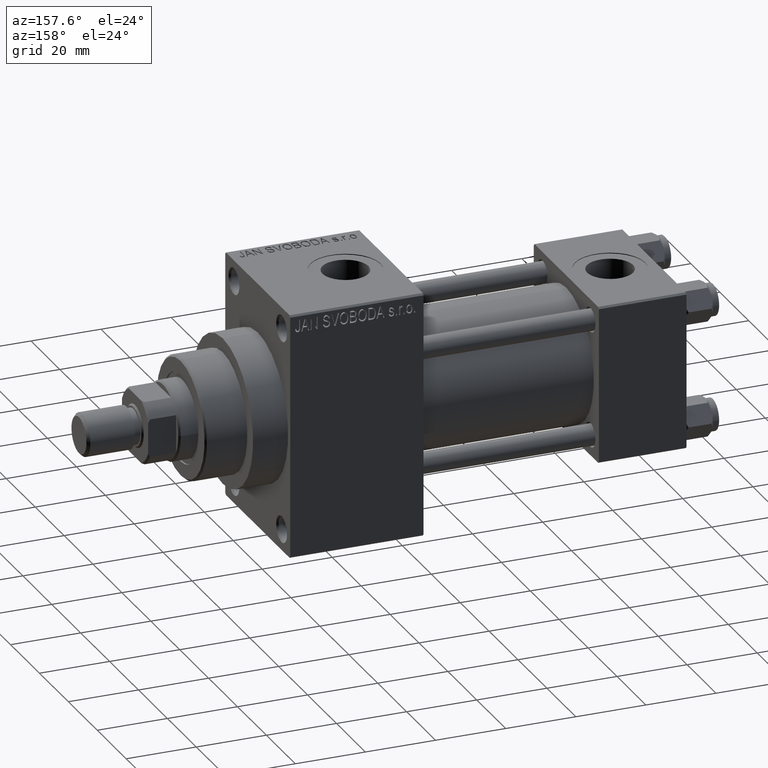
[diagram: clean part render]
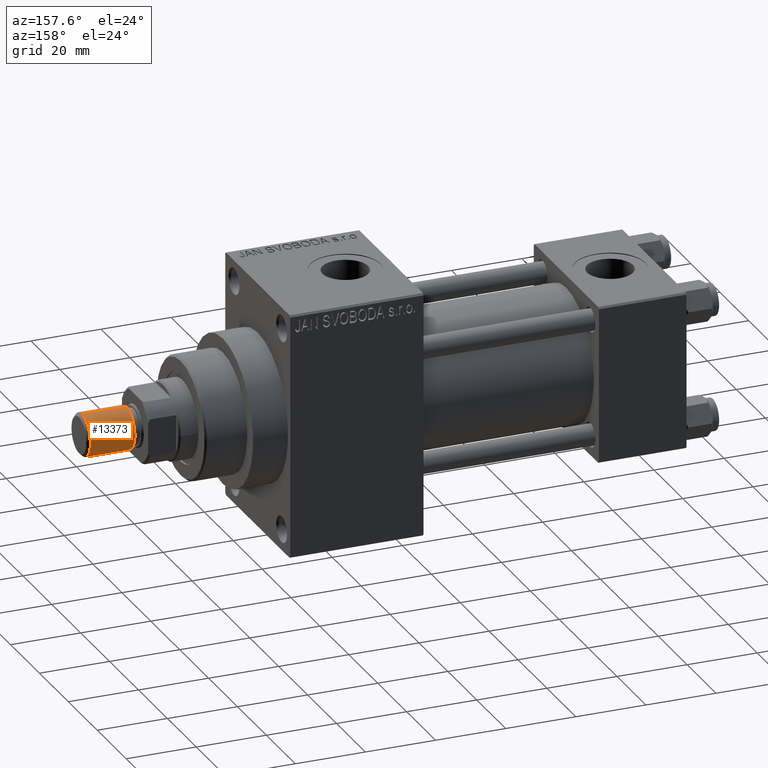
[diagram: same view with one face highlighted and labeled with its STEP entity id]
A machine part, auxiliary view. The second image highlights one B-rep face of the part: STEP entity #13373.
In plain terms, the highlighted cylindrical surface (edge-blend (fillet) strip) has radius 6 mm, axis along (1, -0, -0).
Its self-contained STEP definition (entity closure, byte-faithful):
#1304 = DIRECTION ( 'NONE',  ( -0.000000000000000000, -0.000000000000000000, -1.000000000000000000 ) ) ;
#5035 = EDGE_CURVE ( 'NONE', #37048, #5448, #44398, .T. ) ;
#5448 = VERTEX_POINT ( 'NONE', #22685 ) ;
#8377 = EDGE_CURVE ( 'NONE', #5448, #18850, #8860, .T. ) ;
#8860 = CIRCLE ( 'NONE', #46515, 6.000000000000000888 ) ;
#10750 = VERTEX_POINT ( 'NONE', #47335 ) ;
#11121 = AXIS2_PLACEMENT_3D ( 'NONE', #13384, #46579, #42495 ) ;
#11896 = CARTESIAN_POINT ( 'NONE',  ( 6.000000000000000888, 7.347880794884120722E-16, 13.50000000000000000 ) ) ;
#13373 = ADVANCED_FACE ( 'NONE', ( #19375 ), #41503, .T. ) ;
#13384 = CARTESIAN_POINT ( 'NONE',  ( 0.000000000000000000, 0.000000000000000000, 13.50000000000000000 ) ) ;
#15975 = CARTESIAN_POINT ( 'NONE',  ( -6.000000000000000888, 0.000000000000000000, 0.8000000000000055955 ) ) ;
#16009 = CARTESIAN_POINT ( 'NONE',  ( 0.000000000000000000, 0.000000000000000000, 13.50000000000000000 ) ) ;
#18850 = VERTEX_POINT ( 'NONE', #15975 ) ;
#19033 = ORIENTED_EDGE ( 'NONE', *, *, #46773, .F. ) ;
#19375 = FACE_OUTER_BOUND ( 'NONE', #29557, .T. ) ;
#21347 = EDGE_CURVE ( 'NONE', #37048, #10750, #31108, .T. ) ;
#21926 = ORIENTED_EDGE ( 'NONE', *, *, #5035, .T. ) ;
#22673 = DIRECTION ( 'NONE',  ( -0.000000000000000000, -0.000000000000000000, 1.000000000000000000 ) ) ;
#22685 = CARTESIAN_POINT ( 'NONE',  ( 6.000000000000000888, 7.347880794884120722E-16, 0.8000000000000055955 ) ) ;
#27966 = ORIENTED_EDGE ( 'NONE', *, *, #21347, .F. ) ;
#29557 = EDGE_LOOP ( 'NONE', ( #27966, #21926, #38776, #19033 ) ) ;
#30423 = CARTESIAN_POINT ( 'NONE',  ( 6.000000000000000888, 7.347880794884120722E-16, 13.50000000000000000 ) ) ;
#30441 = DIRECTION ( 'NONE',  ( -1.000000000000000000, 0.000000000000000000, 0.000000000000000000 ) ) ;
#31108 = CIRCLE ( 'NONE', #11121, 6.000000000000000888 ) ;
#34029 = DIRECTION ( 'NONE',  ( -0.000000000000000000, -0.000000000000000000, -1.000000000000000000 ) ) ;
#34522 = DIRECTION ( 'NONE',  ( -0.000000000000000000, -0.000000000000000000, -1.000000000000000000 ) ) ;
#35235 = CARTESIAN_POINT ( 'NONE',  ( -6.000000000000000888, 0.000000000000000000, 13.50000000000000000 ) ) ;
#35726 = VECTOR ( 'NONE', #34029, 1000.000000000000000 ) ;
#36641 = DIRECTION ( 'NONE',  ( 1.000000000000000000, 0.000000000000000000, 0.000000000000000000 ) ) ;
#37048 = VERTEX_POINT ( 'NONE', #30423 ) ;
#38776 = ORIENTED_EDGE ( 'NONE', *, *, #8377, .T. ) ;
#38990 = AXIS2_PLACEMENT_3D ( 'NONE', #16009, #1304, #30441 ) ;
#41503 = CYLINDRICAL_SURFACE ( 'NONE', #38990, 6.000000000000000888 ) ;
#42222 = LINE ( 'NONE', #35235, #42423 ) ;
#42423 = VECTOR ( 'NONE', #34522, 1000.000000000000000 ) ;
#42495 = DIRECTION ( 'NONE',  ( 1.000000000000000000, 0.000000000000000000, 0.000000000000000000 ) ) ;
#44398 = LINE ( 'NONE', #11896, #35726 ) ;
#44582 = CARTESIAN_POINT ( 'NONE',  ( 0.000000000000000000, 0.000000000000000000, 0.8000000000000055955 ) ) ;
#46515 = AXIS2_PLACEMENT_3D ( 'NONE', #44582, #22673, #36641 ) ;
#46579 = DIRECTION ( 'NONE',  ( 0.000000000000000000, 0.000000000000000000, 1.000000000000000000 ) ) ;
#46773 = EDGE_CURVE ( 'NONE', #10750, #18850, #42222, .T. ) ;
#47335 = CARTESIAN_POINT ( 'NONE',  ( -6.000000000000000888, 0.000000000000000000, 13.50000000000000000 ) ) ;